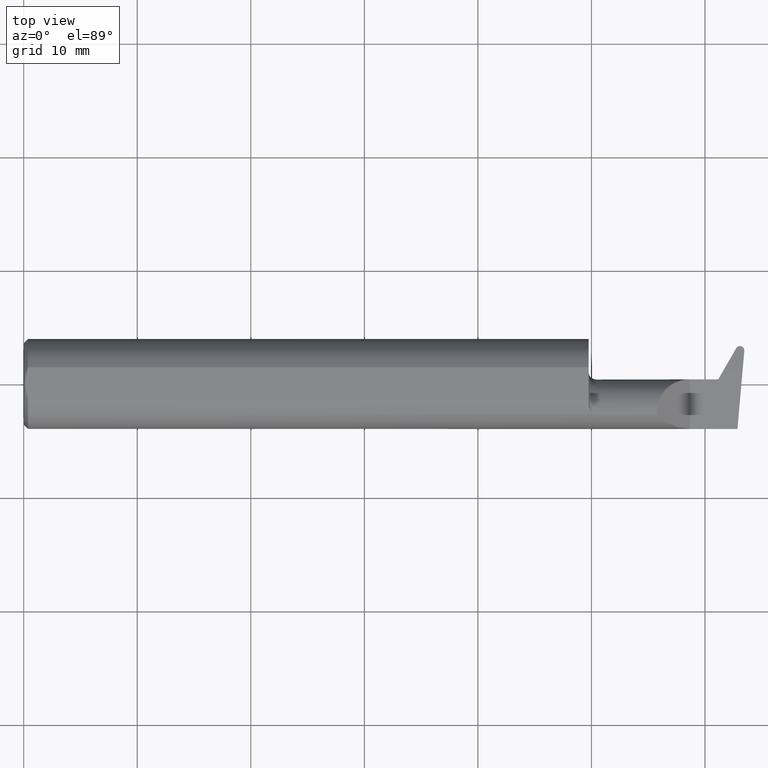
[diagram: clean part render]
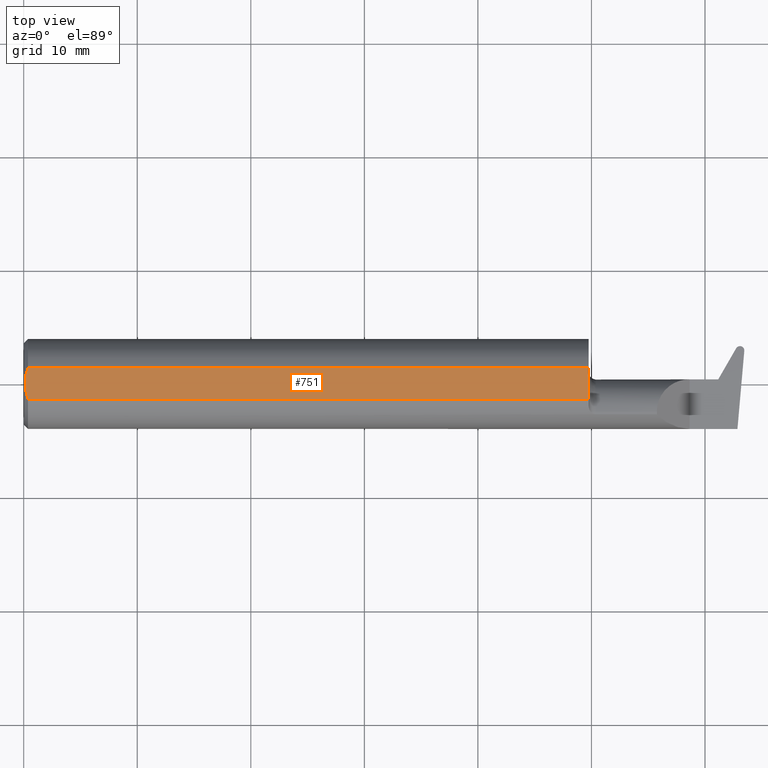
[diagram: same view with one face highlighted and labeled with its STEP entity id]
A machine part, top view. The second image highlights one B-rep face of the part: STEP entity #751.
In plain terms, the highlighted planar face has unit normal (-0, 0, -1).
Its self-contained STEP definition (entity closure, byte-faithful):
#27 = CARTESIAN_POINT ( 'NONE',  ( 0.004999999999999610659, 1.568771489523154700E-17, 0.1460999999999999521 ) ) ;
#32 = ORIENTED_EDGE ( 'NONE', *, *, #267, .F. ) ;
#63 = VERTEX_POINT ( 'NONE', #654 ) ;
#71 = ORIENTED_EDGE ( 'NONE', *, *, #91, .F. ) ;
#91 = EDGE_CURVE ( 'NONE', #838, #574, #451, .T. ) ;
#138 = CARTESIAN_POINT ( 'NONE',  ( 1.958566166913449536, 0.05497272050753906208, 0.1460999999999999521 ) ) ;
#177 = VERTEX_POINT ( 'NONE', #138 ) ;
#251 = CARTESIAN_POINT ( 'NONE',  ( 1.958566166913449536, -0.05497272050753906208, 0.1460999999999999521 ) ) ;
#257 = ORIENTED_EDGE ( 'NONE', *, *, #494, .T. ) ;
#267 = EDGE_CURVE ( 'NONE', #63, #177, #779, .T. ) ;
#275 = CARTESIAN_POINT ( 'NONE',  ( 0.009389923699172924090, -0.03718686308286637404, 0.1460999999999999244 ) ) ;
#287 = CARTESIAN_POINT ( 'NONE',  ( 0.004999999999997538531, -0.009421212120332627532, 0.1460999999999999521 ) ) ;
#295 = PLANE ( 'NONE',  #399 ) ;
#300 = CARTESIAN_POINT ( 'NONE',  ( 0.000000000000000000, 0.1000000000000000056, 0.1460999999999999521 ) ) ;
#310 = CARTESIAN_POINT ( 'NONE',  ( 0.004999999999999610659, 1.568771489523154700E-17, 0.1460999999999999521 ) ) ;
#312 = CARTESIAN_POINT ( 'NONE',  ( 2.500000000000000000, -0.05497272050753906208, 0.1460999999999999521 ) ) ;
#316 = B_SPLINE_CURVE_WITH_KNOTS ( 'NONE', 3,
 ( #899, #693, #771, #310 ),
 .UNSPECIFIED., .F., .F.,
 ( 4, 4 ),
 ( 0.003045340734740736681, 0.004461768721905542794 ),
 .UNSPECIFIED. ) ;
#357 = CARTESIAN_POINT ( 'NONE',  ( 0.004999999999999610659, 1.568771489523154700E-17, 0.1460999999999999521 ) ) ;
#385 = DIRECTION ( 'NONE',  ( -0.000000000000000000, 0.000000000000000000, -1.000000000000000000 ) ) ;
#399 = AXIS2_PLACEMENT_3D ( 'NONE', #300, #385, #1004 ) ;
#407 = VECTOR ( 'NONE', #947, 39.37007874015748143 ) ;
#409 = VERTEX_POINT ( 'NONE', #27 ) ;
#437 = CARTESIAN_POINT ( 'NONE',  ( 0.01499999999999971148, -0.05497272050753906208, 0.1460999999999999521 ) ) ;
#440 = B_SPLINE_CURVE_WITH_KNOTS ( 'NONE', 3,
 ( #357, #287, #963, #275, #809, #437 ),
 .UNSPECIFIED., .F., .F.,
 ( 4, 2, 4 ),
 ( 0.004461768721905542794, 0.005169424789028948669, 0.005877080856152355412 ),
 .UNSPECIFIED. ) ;
#451 = LINE ( 'NONE', #312, #720 ) ;
#494 = EDGE_CURVE ( 'NONE', #63, #409, #316, .T. ) ;
#529 = CARTESIAN_POINT ( 'NONE',  ( 1.958566166913449536, 0.1000000000000000056, 0.1460999999999999521 ) ) ;
#544 = FACE_OUTER_BOUND ( 'NONE', #554, .T. ) ;
#554 = EDGE_LOOP ( 'NONE', ( #775, #32, #257, #862, #71 ) ) ;
#574 = VERTEX_POINT ( 'NONE', #919 ) ;
#586 = EDGE_CURVE ( 'NONE', #409, #574, #440, .T. ) ;
#617 = DIRECTION ( 'NONE',  ( -1.000000000000000000, -0.000000000000000000, -0.000000000000000000 ) ) ;
#654 = CARTESIAN_POINT ( 'NONE',  ( 0.01499999999999970281, 0.05497272050753906208, 0.1460999999999999521 ) ) ;
#693 = CARTESIAN_POINT ( 'NONE',  ( 0.008721867529794214910, 0.03714539689046109094, 0.1460999999999999521 ) ) ;
#720 = VECTOR ( 'NONE', #617, 39.37007874015748143 ) ;
#751 = ADVANCED_FACE ( 'NONE', ( #544 ), #295, .F. ) ;
#771 = CARTESIAN_POINT ( 'NONE',  ( 0.004999999999997604451, 0.01885727988527094792, 0.1460999999999999521 ) ) ;
#775 = ORIENTED_EDGE ( 'NONE', *, *, #795, .F. ) ;
#779 = LINE ( 'NONE', #938, #407 ) ;
#795 = EDGE_CURVE ( 'NONE', #177, #838, #907, .T. ) ;
#809 = CARTESIAN_POINT ( 'NONE',  ( 0.01189405015400045972, -0.04615309567390931539, 0.1460999999999999521 ) ) ;
#838 = VERTEX_POINT ( 'NONE', #251 ) ;
#852 = VECTOR ( 'NONE', #861, 39.37007874015748143 ) ;
#861 = DIRECTION ( 'NONE',  ( 0.000000000000000000, -1.000000000000000000, 0.000000000000000000 ) ) ;
#862 = ORIENTED_EDGE ( 'NONE', *, *, #586, .T. ) ;
#899 = CARTESIAN_POINT ( 'NONE',  ( 0.01499999999999970281, 0.05497272050753906208, 0.1460999999999999521 ) ) ;
#907 = LINE ( 'NONE', #529, #852 ) ;
#919 = CARTESIAN_POINT ( 'NONE',  ( 0.01499999999999971148, -0.05497272050753906208, 0.1460999999999999521 ) ) ;
#938 = CARTESIAN_POINT ( 'NONE',  ( 2.500000000000000000, 0.05497272050753906208, 0.1460999999999999521 ) ) ;
#947 = DIRECTION ( 'NONE',  ( 1.000000000000000000, 0.000000000000000000, 0.000000000000000000 ) ) ;
#963 = CARTESIAN_POINT ( 'NONE',  ( 0.005939505582910693110, -0.01887490007994177196, 0.1460999999999999521 ) ) ;
#1004 = DIRECTION ( 'NONE',  ( -1.000000000000000000, 0.000000000000000000, 0.000000000000000000 ) ) ;